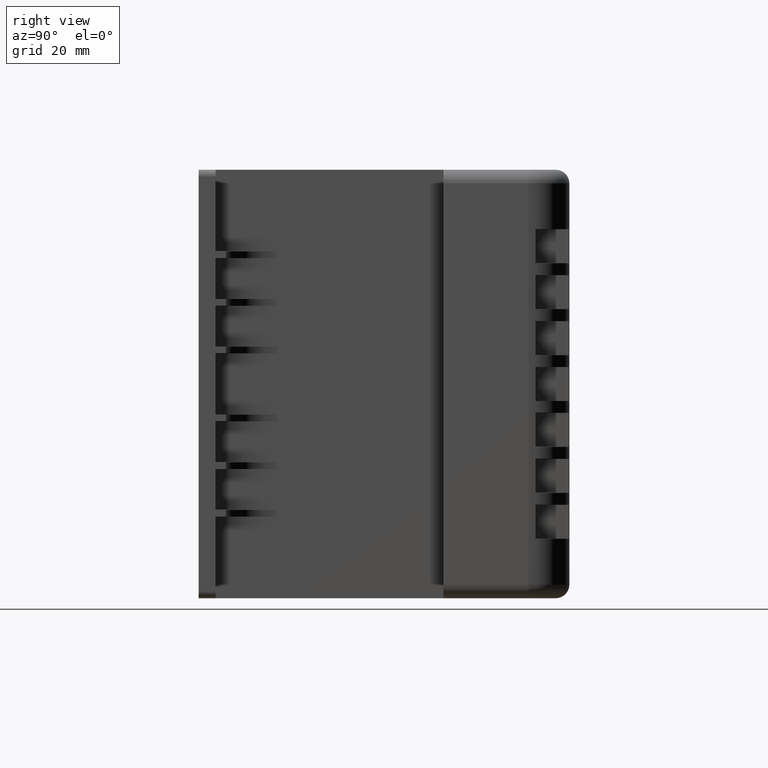
[diagram: clean part render]
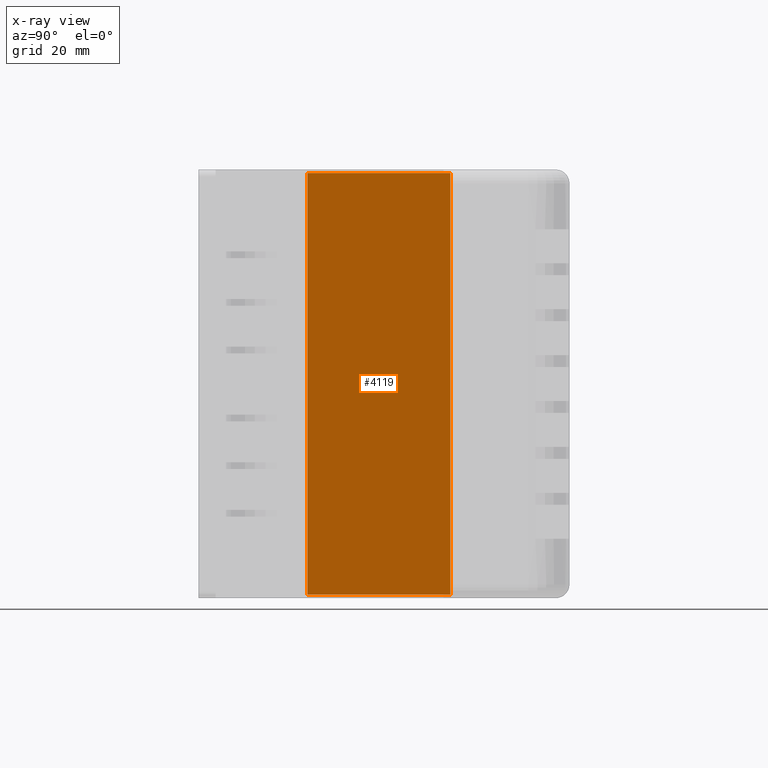
[diagram: x-ray — body ghosted, one internal face saturated and labeled with its STEP entity id]
A machine part, right view, then the same camera in x-ray: the body is ghosted and one INTERNAL B-rep face — a face not visible from any outside direction — is saturated and labeled: STEP entity #4119.
In plain terms, the highlighted planar face has unit normal (-1, 0, 0).
Its self-contained STEP definition (entity closure, byte-faithful):
#406=FACE_OUTER_BOUND('',#663,.T.);
#663=EDGE_LOOP('',(#3026,#3027,#3028,#3029));
#1037=LINE('',#6481,#1429);
#1038=LINE('',#6484,#1430);
#1039=LINE('',#6486,#1431);
#1040=LINE('',#6487,#1432);
#1429=VECTOR('',#5302,10.);
#1430=VECTOR('',#5305,10.);
#1431=VECTOR('',#5306,10.);
#1432=VECTOR('',#5307,10.);
#1786=VERTEX_POINT('',#6474);
#1789=VERTEX_POINT('',#6479);
#1790=VERTEX_POINT('',#6483);
#1791=VERTEX_POINT('',#6485);
#2229=EDGE_CURVE('',#1786,#1789,#1037,.T.);
#2230=EDGE_CURVE('',#1790,#1786,#1038,.T.);
#2231=EDGE_CURVE('',#1791,#1789,#1039,.T.);
#2232=EDGE_CURVE('',#1790,#1791,#1040,.T.);
#3026=ORIENTED_EDGE('',*,*,#2230,.T.);
#3027=ORIENTED_EDGE('',*,*,#2229,.T.);
#3028=ORIENTED_EDGE('',*,*,#2231,.F.);
#3029=ORIENTED_EDGE('',*,*,#2232,.F.);
#3646=PLANE('',#4525);
#4119=ADVANCED_FACE('',(#406),#3646,.T.);
#4525=AXIS2_PLACEMENT_3D('',#6482,#5303,#5304);
#5302=DIRECTION('',(0.,1.,0.));
#5303=DIRECTION('center_axis',(-1.,0.,2.3485693676572E-13));
#5304=DIRECTION('ref_axis',(2.3485693676572E-13,0.,1.));
#5305=DIRECTION('',(2.3485693676572E-13,0.,1.));
#5306=DIRECTION('',(2.3485693676572E-13,0.,1.));
#5307=DIRECTION('',(0.,1.,0.));
#6474=CARTESIAN_POINT('',(-0.999999999999983,0.,125.));
#6479=CARTESIAN_POINT('',(-0.999999999999979,42.,125.));
#6481=CARTESIAN_POINT('',(-0.999999999999983,0.,125.));
#6482=CARTESIAN_POINT('Origin',(-1.00000000002911,0.,1.0000000000291));
#6483=CARTESIAN_POINT('',(-1.00000000002911,0.,1.0000000000291));
#6484=CARTESIAN_POINT('',(-1.00000000002911,0.,1.0000000000291));
#6485=CARTESIAN_POINT('',(-1.00000000002911,42.,1.0000000000291));
#6486=CARTESIAN_POINT('',(-1.00000000002911,42.,1.0000000000291));
#6487=CARTESIAN_POINT('',(-1.00000000002911,0.,1.0000000000291));